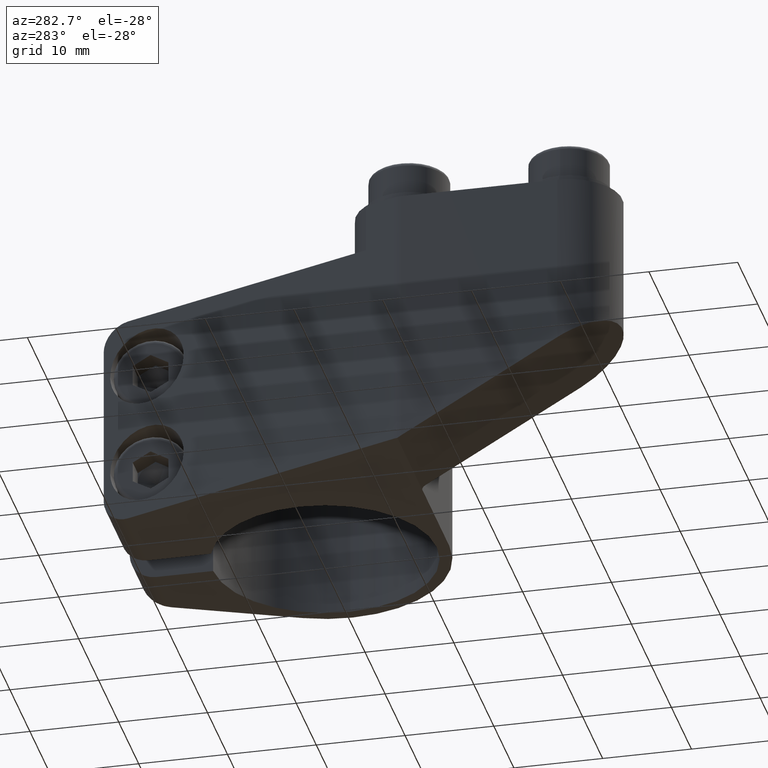
[diagram: clean part render]
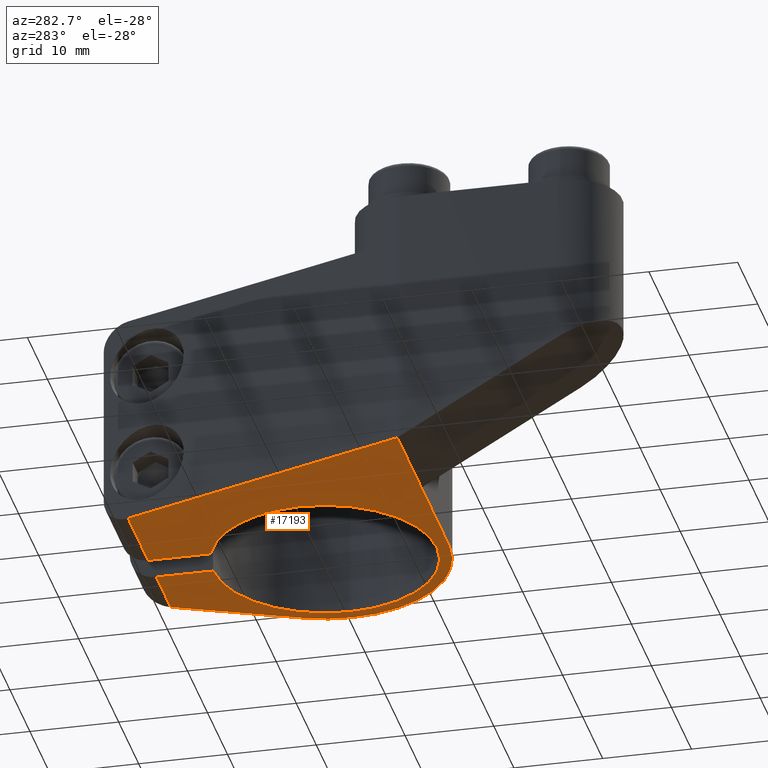
[diagram: same view with one face highlighted and labeled with its STEP entity id]
A machine part, auxiliary view. The second image highlights one B-rep face of the part: STEP entity #17193.
In plain terms, the highlighted planar face has unit normal (0, 0, 1).
Its self-contained STEP definition (entity closure, byte-faithful):
#148 = EDGE_CURVE ( 'NONE', #1578, #4331, #4148, .T. ) ;
#260 = EDGE_CURVE ( 'NONE', #14233, #13065, #12298, .T. ) ;
#940 = CIRCLE ( 'NONE', #15067, 12.60000000000000000 ) ;
#993 = AXIS2_PLACEMENT_3D ( 'NONE', #18239, #4677, #15075 ) ;
#1046 = CARTESIAN_POINT ( 'NONE',  ( -25.96141019870659900, -14.00000000000000000, -12.25000000000000000 ) ) ;
#1299 = LINE ( 'NONE', #15096, #10839 ) ;
#1536 = DIRECTION ( 'NONE',  ( -1.000000000000000000, -1.445602896647339400E-016, -0.0000000000000000000 ) ) ;
#1578 = VERTEX_POINT ( 'NONE', #1781 ) ;
#1741 = ORIENTED_EDGE ( 'NONE', *, *, #13271, .T. ) ;
#1781 = CARTESIAN_POINT ( 'NONE',  ( -14.08333333333333200, 19.00000000000000400, -12.25000000000000000 ) ) ;
#1821 = CARTESIAN_POINT ( 'NONE',  ( -2.571758278209441700E-015, -14.00000000000000200, -12.25000000000000000 ) ) ;
#2025 = DIRECTION ( 'NONE',  ( 1.000000000000000000, -1.239088197126291100E-016, 0.0000000000000000000 ) ) ;
#2167 = DIRECTION ( 'NONE',  ( -0.0000000000000000000, -0.0000000000000000000, -1.000000000000000000 ) ) ;
#2174 = VERTEX_POINT ( 'NONE', #6168 ) ;
#2319 = VERTEX_POINT ( 'NONE', #15782 ) ;
#2414 = ORIENTED_EDGE ( 'NONE', *, *, #260, .F. ) ;
#2559 = DIRECTION ( 'NONE',  ( 1.000000000000000000, 0.0000000000000000000, 0.0000000000000000000 ) ) ;
#3284 = VERTEX_POINT ( 'NONE', #3414 ) ;
#3292 = CARTESIAN_POINT ( 'NONE',  ( -12.60000000000000000, 0.0000000000000000000, -12.25000000000000000 ) ) ;
#3414 = CARTESIAN_POINT ( 'NONE',  ( 7.250000000000000900, 19.00000000000000400, -12.25000000000000000 ) ) ;
#3514 = CARTESIAN_POINT ( 'NONE',  ( 0.0000000000000000000, 0.0000000000000000000, -12.25000000000000000 ) ) ;
#3824 = ORIENTED_EDGE ( 'NONE', *, *, #15871, .T. ) ;
#3844 = DIRECTION ( 'NONE',  ( -0.0000000000000000000, -0.0000000000000000000, -1.000000000000000000 ) ) ;
#4077 = VERTEX_POINT ( 'NONE', #8446 ) ;
#4148 = LINE ( 'NONE', #10528, #10199 ) ;
#4306 = ORIENTED_EDGE ( 'NONE', *, *, #13084, .F. ) ;
#4331 = VERTEX_POINT ( 'NONE', #12069 ) ;
#4595 = VECTOR ( 'NONE', #1536, 1000.000000000000000 ) ;
#4677 = DIRECTION ( 'NONE',  ( -0.0000000000000000000, -0.0000000000000000000, -1.000000000000000000 ) ) ;
#4792 = AXIS2_PLACEMENT_3D ( 'NONE', #8582, #19086, #5768 ) ;
#5046 = ORIENTED_EDGE ( 'NONE', *, *, #6529, .F. ) ;
#5768 = DIRECTION ( 'NONE',  ( 1.000000000000000000, 0.0000000000000000000, -0.0000000000000000000 ) ) ;
#5831 = PLANE ( 'NONE',  #4792 ) ;
#5850 = VERTEX_POINT ( 'NONE', #11773 ) ;
#5972 = VERTEX_POINT ( 'NONE', #1046 ) ;
#6016 = CARTESIAN_POINT ( 'NONE',  ( 12.92307692307692700, 5.384615384615384100, -12.25000000000000000 ) ) ;
#6168 = CARTESIAN_POINT ( 'NONE',  ( -3.999999999999998200, 11.94822162499507800, -12.25000000000000000 ) ) ;
#6193 = FACE_OUTER_BOUND ( 'NONE', #10156, .T. ) ;
#6420 = EDGE_CURVE ( 'NONE', #16932, #2174, #940, .T. ) ;
#6440 = CARTESIAN_POINT ( 'NONE',  ( 5.925882729774182700E-016, 22.00000000000000000, -12.25000000000000000 ) ) ;
#6529 = EDGE_CURVE ( 'NONE', #2319, #16932, #12366, .T. ) ;
#6929 = ORIENTED_EDGE ( 'NONE', *, *, #15785, .T. ) ;
#7288 = DIRECTION ( 'NONE',  ( 1.000000000000000000, -3.854941057726239100E-016, -0.0000000000000000000 ) ) ;
#7630 = LINE ( 'NONE', #13471, #4595 ) ;
#7736 = DIRECTION ( 'NONE',  ( -0.0000000000000000000, -0.0000000000000000000, -1.000000000000000000 ) ) ;
#8133 = LINE ( 'NONE', #17124, #9243 ) ;
#8161 = CARTESIAN_POINT ( 'NONE',  ( -13.49999999999999800, -13.99999999999999800, -12.25000000000000000 ) ) ;
#8446 = CARTESIAN_POINT ( 'NONE',  ( 4.034643560697315800E-016, 19.00000000000000000, -12.25000000000000000 ) ) ;
#8582 = CARTESIAN_POINT ( 'NONE',  ( 0.0000000000000000000, 0.0000000000000000000, -12.25000000000000000 ) ) ;
#8637 = CIRCLE ( 'NONE', #16755, 2.499999999999998700 ) ;
#9199 = EDGE_CURVE ( 'NONE', #15259, #14233, #8133, .T. ) ;
#9243 = VECTOR ( 'NONE', #2025, 1000.000000000000000 ) ;
#9276 = AXIS2_PLACEMENT_3D ( 'NONE', #14369, #3844, #2559 ) ;
#10156 = EDGE_LOOP ( 'NONE', ( #10269, #3824, #1741, #11186, #6929, #16182, #14159, #5046, #16839, #4306, #11438, #13743, #2414 ) ) ;
#10199 = VECTOR ( 'NONE', #13549, 1000.000000000000100 ) ;
#10265 = CARTESIAN_POINT ( 'NONE',  ( 7.324388009679854500E-015, 19.00000000000000000, -12.25000000000000000 ) ) ;
#10269 = ORIENTED_EDGE ( 'NONE', *, *, #9199, .F. ) ;
#10345 = VERTEX_POINT ( 'NONE', #11800 ) ;
#10528 = CARTESIAN_POINT ( 'NONE',  ( -12.99999999999999800, 22.00000000000000400, -12.25000000000000000 ) ) ;
#10839 = VECTOR ( 'NONE', #18068, 1000.000000000000000 ) ;
#10927 = DIRECTION ( 'NONE',  ( -6.304130563589558300E-017, -1.000000000000000000, 0.0000000000000000000 ) ) ;
#11141 = DIRECTION ( 'NONE',  ( 1.000000000000000000, 0.0000000000000000000, 0.0000000000000000000 ) ) ;
#11186 = ORIENTED_EDGE ( 'NONE', *, *, #148, .F. ) ;
#11344 = CARTESIAN_POINT ( 'NONE',  ( 0.0000000000000000000, 0.0000000000000000000, -12.25000000000000000 ) ) ;
#11438 = ORIENTED_EDGE ( 'NONE', *, *, #17279, .T. ) ;
#11551 = DIRECTION ( 'NONE',  ( 1.000000000000000000, 0.0000000000000000000, 0.0000000000000000000 ) ) ;
#11773 = CARTESIAN_POINT ( 'NONE',  ( 7.715274834628325400E-016, 12.60000000000000000, -12.25000000000000000 ) ) ;
#11800 = CARTESIAN_POINT ( 'NONE',  ( -3.999999999999999100, 19.00000000000000000, -12.25000000000000000 ) ) ;
#11897 = CIRCLE ( 'NONE', #993, 12.60000000000000000 ) ;
#12069 = CARTESIAN_POINT ( 'NONE',  ( -25.85138474922924300, -13.58845007478866800, -12.25000000000000000 ) ) ;
#12296 = DIRECTION ( 'NONE',  ( 1.000000000000000000, 0.0000000000000000000, 0.0000000000000000000 ) ) ;
#12298 = CIRCLE ( 'NONE', #15522, 14.00000000000000200 ) ;
#12342 = VECTOR ( 'NONE', #13550, 1000.000000000000000 ) ;
#12366 = CIRCLE ( 'NONE', #9276, 12.60000000000000000 ) ;
#13001 = EDGE_CURVE ( 'NONE', #5850, #2319, #11897, .T. ) ;
#13065 = VERTEX_POINT ( 'NONE', #18111 ) ;
#13084 = EDGE_CURVE ( 'NONE', #4077, #5850, #15194, .T. ) ;
#13259 = DIRECTION ( 'NONE',  ( -0.3846153846153848000, 0.9230769230769230200, 0.0000000000000000000 ) ) ;
#13267 = VECTOR ( 'NONE', #13259, 1000.000000000000000 ) ;
#13271 = EDGE_CURVE ( 'NONE', #5972, #4331, #8637, .T. ) ;
#13335 = EDGE_CURVE ( 'NONE', #2174, #10345, #13535, .T. ) ;
#13471 = CARTESIAN_POINT ( 'NONE',  ( 14.00000000000000500, -13.99999999999999500, -12.25000000000000000 ) ) ;
#13535 = LINE ( 'NONE', #13612, #12342 ) ;
#13549 = DIRECTION ( 'NONE',  ( -0.3396444637775567500, -0.9405538996916954500, 0.0000000000000000000 ) ) ;
#13550 = DIRECTION ( 'NONE',  ( -8.628938140391291900E-017, 1.000000000000000000, -0.0000000000000000000 ) ) ;
#13612 = CARTESIAN_POINT ( 'NONE',  ( -3.999999999999999100, 22.00000000000000000, -12.25000000000000000 ) ) ;
#13699 = LINE ( 'NONE', #10265, #15593 ) ;
#13743 = ORIENTED_EDGE ( 'NONE', *, *, #14920, .F. ) ;
#14159 = ORIENTED_EDGE ( 'NONE', *, *, #6420, .F. ) ;
#14233 = VERTEX_POINT ( 'NONE', #1821 ) ;
#14369 = CARTESIAN_POINT ( 'NONE',  ( 0.0000000000000000000, 0.0000000000000000000, -12.25000000000000000 ) ) ;
#14492 = VECTOR ( 'NONE', #10927, 1000.000000000000000 ) ;
#14920 = EDGE_CURVE ( 'NONE', #13065, #3284, #16095, .T. ) ;
#15067 = AXIS2_PLACEMENT_3D ( 'NONE', #3514, #2167, #11141 ) ;
#15075 = DIRECTION ( 'NONE',  ( 1.000000000000000000, 0.0000000000000000000, 0.0000000000000000000 ) ) ;
#15096 = CARTESIAN_POINT ( 'NONE',  ( 0.0000000000000000000, 19.00000000000000000, -12.25000000000000000 ) ) ;
#15194 = LINE ( 'NONE', #6440, #14492 ) ;
#15259 = VERTEX_POINT ( 'NONE', #8161 ) ;
#15522 = AXIS2_PLACEMENT_3D ( 'NONE', #11344, #18867, #11551 ) ;
#15593 = VECTOR ( 'NONE', #7288, 1000.000000000000000 ) ;
#15782 = CARTESIAN_POINT ( 'NONE',  ( 12.60000000000000000, 1.543054966925665100E-015, -12.25000000000000000 ) ) ;
#15785 = EDGE_CURVE ( 'NONE', #1578, #10345, #13699, .T. ) ;
#15871 = EDGE_CURVE ( 'NONE', #15259, #5972, #7630, .T. ) ;
#16095 = LINE ( 'NONE', #6016, #13267 ) ;
#16182 = ORIENTED_EDGE ( 'NONE', *, *, #13335, .F. ) ;
#16387 = CARTESIAN_POINT ( 'NONE',  ( -23.50000000000000400, -14.43756123423255900, -12.25000000000000000 ) ) ;
#16755 = AXIS2_PLACEMENT_3D ( 'NONE', #16387, #7736, #12296 ) ;
#16839 = ORIENTED_EDGE ( 'NONE', *, *, #13001, .F. ) ;
#16932 = VERTEX_POINT ( 'NONE', #3292 ) ;
#17124 = CARTESIAN_POINT ( 'NONE',  ( -13.99999999999999800, -13.99999999999999800, -12.25000000000000000 ) ) ;
#17193 = ADVANCED_FACE ( 'NONE', ( #6193 ), #5831, .F. ) ;
#17279 = EDGE_CURVE ( 'NONE', #4077, #3284, #1299, .T. ) ;
#18068 = DIRECTION ( 'NONE',  ( 1.000000000000000000, -0.0000000000000000000, -0.0000000000000000000 ) ) ;
#18111 = CARTESIAN_POINT ( 'NONE',  ( 12.92307692307692700, 5.384615384615384100, -12.25000000000000000 ) ) ;
#18239 = CARTESIAN_POINT ( 'NONE',  ( 0.0000000000000000000, 0.0000000000000000000, -12.25000000000000000 ) ) ;
#18867 = DIRECTION ( 'NONE',  ( 0.0000000000000000000, 0.0000000000000000000, 1.000000000000000000 ) ) ;
#19086 = DIRECTION ( 'NONE',  ( 0.0000000000000000000, 0.0000000000000000000, 1.000000000000000000 ) ) ;